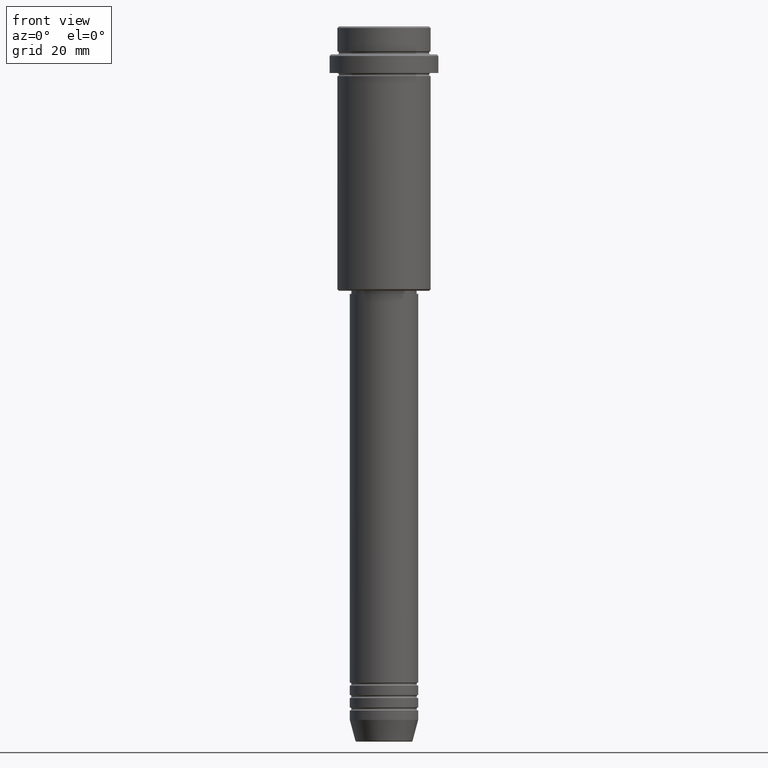
[diagram: clean part render]
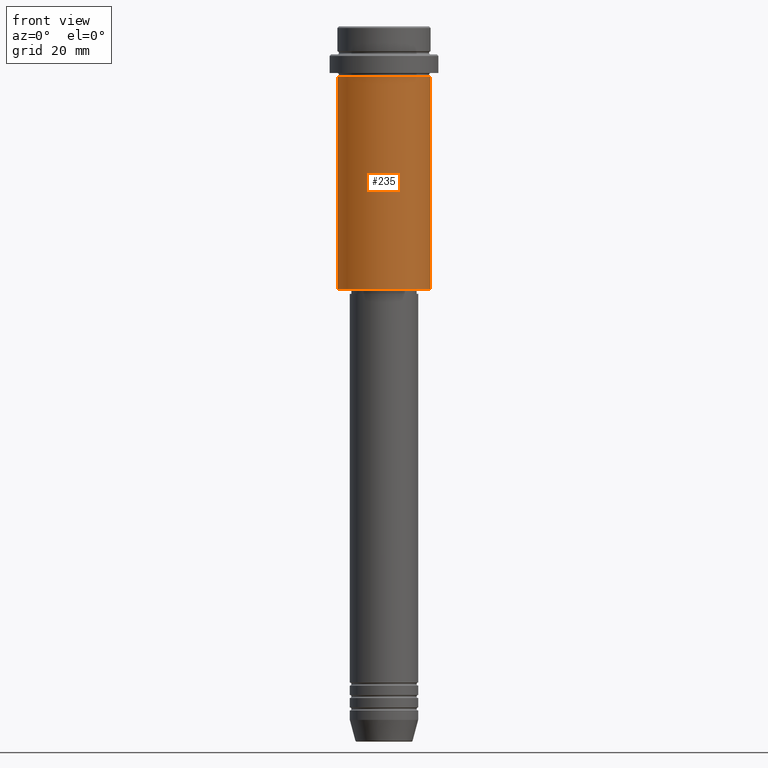
[diagram: same view with one face highlighted and labeled with its STEP entity id]
A machine part, front view. The second image highlights one B-rep face of the part: STEP entity #235.
In plain terms, the highlighted cylindrical surface (partial cylindrical patch) has radius 15 mm, axis along (-0, -0, 1).
Its self-contained STEP definition (entity closure, byte-faithful):
#4 = DIRECTION ( 'NONE',  ( -0.000000000000000000, -0.000000000000000000, 1.000000000000000000 ) ) ;
#73 = AXIS2_PLACEMENT_3D ( 'NONE', #114, #1326, #892 ) ;
#114 = CARTESIAN_POINT ( 'NONE',  ( 0.000000000000000000, 0.000000000000000000, -16.00000000000000000 ) ) ;
#115 = CIRCLE ( 'NONE', #1355, 15.00000000000000000 ) ;
#154 = EDGE_CURVE ( 'NONE', #1406, #1145, #262, .T. ) ;
#206 = DIRECTION ( 'NONE',  ( -0.000000000000000000, -0.000000000000000000, 1.000000000000000000 ) ) ;
#235 = ADVANCED_FACE ( 'NONE', ( #407 ), #1388, .T. ) ;
#262 = LINE ( 'NONE', #276, #802 ) ;
#276 = CARTESIAN_POINT ( 'NONE',  ( -15.00000000000000000, 1.836970198721029589E-15, 0.000000000000000000 ) ) ;
#349 = ORIENTED_EDGE ( 'NONE', *, *, #470, .F. ) ;
#358 = LINE ( 'NONE', #1124, #1396 ) ;
#391 = EDGE_CURVE ( 'NONE', #586, #895, #358, .T. ) ;
#407 = FACE_OUTER_BOUND ( 'NONE', #464, .T. ) ;
#418 = ORIENTED_EDGE ( 'NONE', *, *, #391, .T. ) ;
#464 = EDGE_LOOP ( 'NONE', ( #1107, #1056, #418, #349 ) ) ;
#470 = EDGE_CURVE ( 'NONE', #1145, #895, #1111, .T. ) ;
#477 = DIRECTION ( 'NONE',  ( -0.000000000000000000, -0.000000000000000000, 1.000000000000000000 ) ) ;
#533 = CARTESIAN_POINT ( 'NONE',  ( 0.000000000000000000, 0.000000000000000000, 0.000000000000000000 ) ) ;
#546 = CARTESIAN_POINT ( 'NONE',  ( 0.000000000000000000, 0.000000000000000000, -84.49999999999997158 ) ) ;
#586 = VERTEX_POINT ( 'NONE', #1046 ) ;
#802 = VECTOR ( 'NONE', #477, 1000.000000000000000 ) ;
#827 = EDGE_CURVE ( 'NONE', #1406, #586, #115, .T. ) ;
#845 = CARTESIAN_POINT ( 'NONE',  ( -15.00000000000000355, 1.836970198721029983E-15, -16.00000000000000000 ) ) ;
#886 = CARTESIAN_POINT ( 'NONE',  ( 15.00000000000000178, 0.000000000000000000, -16.00000000000000000 ) ) ;
#892 = DIRECTION ( 'NONE',  ( 1.000000000000000000, 0.000000000000000000, 0.000000000000000000 ) ) ;
#895 = VERTEX_POINT ( 'NONE', #886 ) ;
#1022 = DIRECTION ( 'NONE',  ( -1.000000000000000000, 0.000000000000000000, 0.000000000000000000 ) ) ;
#1046 = CARTESIAN_POINT ( 'NONE',  ( 15.00000000000000000, 0.000000000000000000, -84.49999999999997158 ) ) ;
#1056 = ORIENTED_EDGE ( 'NONE', *, *, #827, .T. ) ;
#1084 = DIRECTION ( 'NONE',  ( 1.000000000000000000, 0.000000000000000000, 0.000000000000000000 ) ) ;
#1107 = ORIENTED_EDGE ( 'NONE', *, *, #154, .F. ) ;
#1111 = CIRCLE ( 'NONE', #73, 15.00000000000000178 ) ;
#1124 = CARTESIAN_POINT ( 'NONE',  ( 15.00000000000000000, 0.000000000000000000, 0.000000000000000000 ) ) ;
#1145 = VERTEX_POINT ( 'NONE', #845 ) ;
#1149 = AXIS2_PLACEMENT_3D ( 'NONE', #533, #206, #1084 ) ;
#1237 = CARTESIAN_POINT ( 'NONE',  ( -15.00000000000000000, 1.836970198721029589E-15, -84.49999999999997158 ) ) ;
#1319 = DIRECTION ( 'NONE',  ( -0.000000000000000000, -0.000000000000000000, 1.000000000000000000 ) ) ;
#1326 = DIRECTION ( 'NONE',  ( -0.000000000000000000, -0.000000000000000000, 1.000000000000000000 ) ) ;
#1355 = AXIS2_PLACEMENT_3D ( 'NONE', #546, #1319, #1022 ) ;
#1388 = CYLINDRICAL_SURFACE ( 'NONE', #1149, 15.00000000000000000 ) ;
#1396 = VECTOR ( 'NONE', #4, 1000.000000000000000 ) ;
#1406 = VERTEX_POINT ( 'NONE', #1237 ) ;